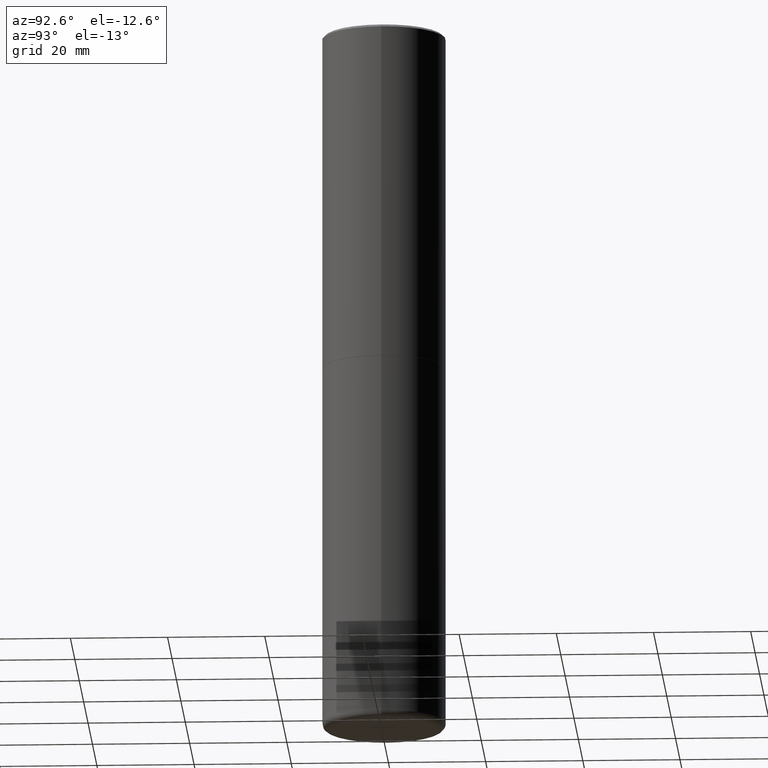
[diagram: clean part render]
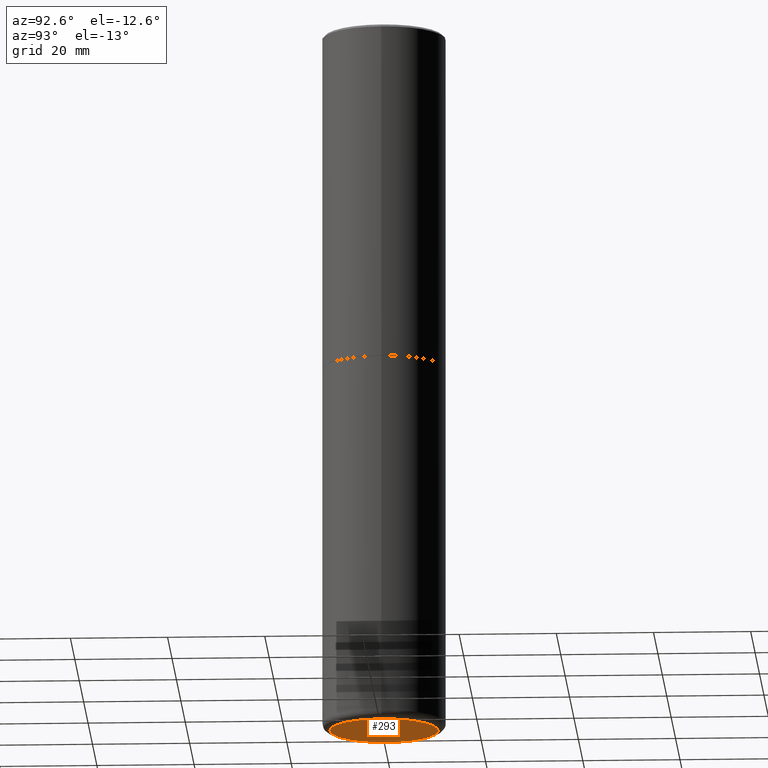
[diagram: same view with one face highlighted and labeled with its STEP entity id]
A machine part, auxiliary view. The second image highlights one B-rep face of the part: STEP entity #293.
In plain terms, the highlighted planar face has unit normal (0, -0, -1).
Its self-contained STEP definition (entity closure, byte-faithful):
#11 = CARTESIAN_POINT ( 'NONE',  ( 4.089694968291764333E-29, -3.435613221068401065E-14, -5.750000000000000888 ) ) ;
#13 = DIRECTION ( 'NONE',  ( -1.000000000000000000, 6.982962677686265922E-15, -4.876176775795935793E-29 ) ) ;
#38 = FACE_OUTER_BOUND ( 'NONE', #127, .T. ) ;
#42 = DIRECTION ( 'NONE',  ( -2.445468806185136597E-29, 3.491481338843145583E-15, 1.000000000000000000 ) ) ;
#44 = DIRECTION ( 'NONE',  ( 1.000000000000000000, -6.982962677686262766E-15, 0.000000000000000000 ) ) ;
#63 = EDGE_CURVE ( 'NONE', #95, #263, #295, .T. ) ;
#69 = EDGE_CURVE ( 'NONE', #263, #95, #135, .T. ) ;
#82 = CARTESIAN_POINT ( 'NONE',  ( 1.406144563556453767E-28, -2.007601769834809252E-14, -5.750000000000000888 ) ) ;
#95 = VERTEX_POINT ( 'NONE', #347 ) ;
#127 = EDGE_LOOP ( 'NONE', ( #407, #150 ) ) ;
#135 = CIRCLE ( 'NONE', #179, 0.4400000000000000022 ) ;
#139 = DIRECTION ( 'NONE',  ( -2.445468806185136597E-29, 3.491481338843145583E-15, 1.000000000000000000 ) ) ;
#150 = ORIENTED_EDGE ( 'NONE', *, *, #69, .F. ) ;
#164 = AXIS2_PLACEMENT_3D ( 'NONE', #82, #42, #302 ) ;
#173 = AXIS2_PLACEMENT_3D ( 'NONE', #11, #175, #13 ) ;
#175 = DIRECTION ( 'NONE',  ( 2.438088387897960049E-29, -3.491481338843145188E-15, -1.000000000000000000 ) ) ;
#179 = AXIS2_PLACEMENT_3D ( 'NONE', #203, #139, #44 ) ;
#203 = CARTESIAN_POINT ( 'NONE',  ( 1.406144563556453767E-28, -2.007601769834809252E-14, -5.750000000000000888 ) ) ;
#263 = VERTEX_POINT ( 'NONE', #389 ) ;
#293 = ADVANCED_FACE ( 'NONE', ( #38 ), #303, .T. ) ;
#295 = CIRCLE ( 'NONE', #164, 0.4400000000000000022 ) ;
#302 = DIRECTION ( 'NONE',  ( 1.000000000000000000, -6.982962677686262766E-15, 0.000000000000000000 ) ) ;
#303 = PLANE ( 'NONE',  #173 ) ;
#347 = CARTESIAN_POINT ( 'NONE',  ( 0.4400000000000000022, -2.314852127653004609E-14, -5.750000000000000888 ) ) ;
#389 = CARTESIAN_POINT ( 'NONE',  ( -0.4400000000000000022, -1.663172240011032058E-14, -5.750000000000000888 ) ) ;
#407 = ORIENTED_EDGE ( 'NONE', *, *, #63, .F. ) ;